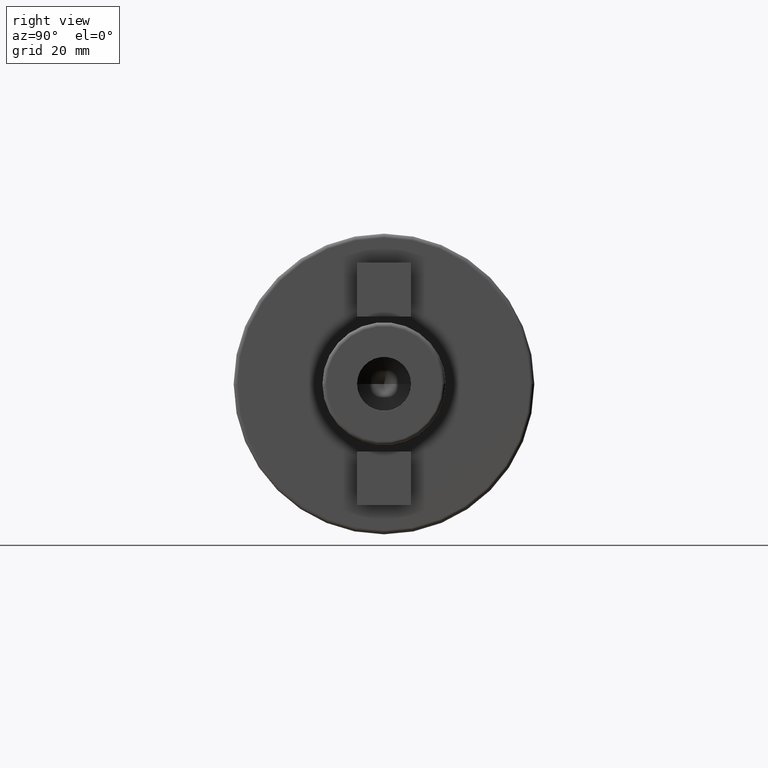
[diagram: clean part render]
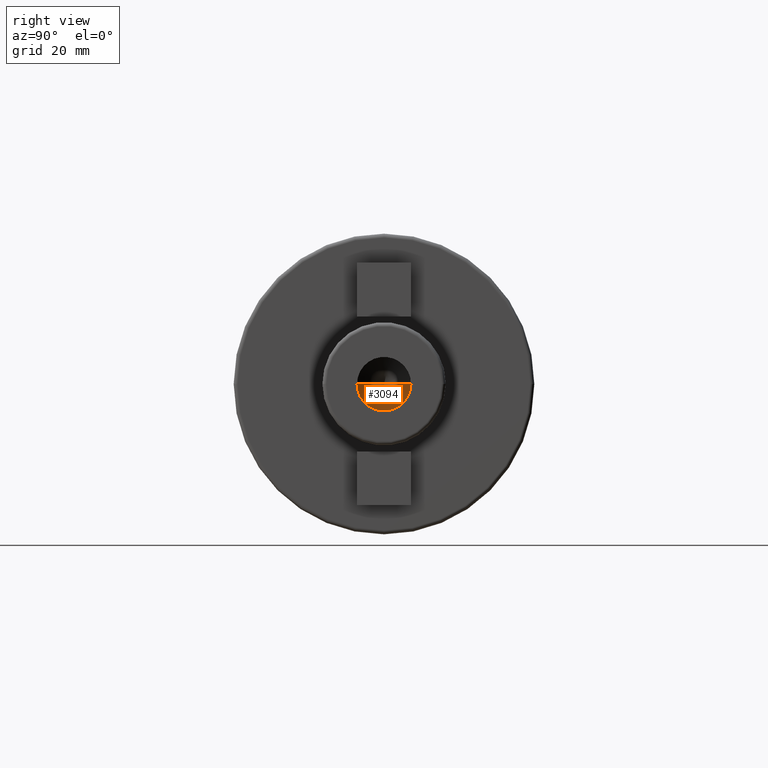
[diagram: same view with one face highlighted and labeled with its STEP entity id]
A machine part, right view. The second image highlights one B-rep face of the part: STEP entity #3094.
In plain terms, the highlighted conical surface has half-angle 59 deg.
Its self-contained STEP definition (entity closure, byte-faithful):
#1052=CARTESIAN_POINT('',(4.9E1,0.E0,0.E0));
#1053=DIRECTION('',(1.E0,0.E0,0.E0));
#1054=DIRECTION('',(0.E0,-1.E0,0.E0));
#1055=AXIS2_PLACEMENT_3D('',#1052,#1053,#1054);
#1070=DIRECTION('',(5.150380749101E-1,-8.571673007021E-1,0.E0));
#1071=VECTOR('',#1070,8.166433780507E0);
#1072=CARTESIAN_POINT('',(4.479397566681E1,0.E0,0.E0));
#1073=LINE('',#1072,#1071);
#1074=DIRECTION('',(5.150380749101E-1,8.571673007021E-1,0.E0));
#1075=VECTOR('',#1074,8.166433780507E0);
#1076=CARTESIAN_POINT('',(4.479397566681E1,0.E0,0.E0));
#1077=LINE('',#1076,#1075);
#1633=CARTESIAN_POINT('',(4.479397566681E1,0.E0,0.E0));
#1634=CARTESIAN_POINT('',(4.9E1,-7.E0,0.E0));
#1635=VERTEX_POINT('',#1633);
#1636=VERTEX_POINT('',#1634);
#1637=CARTESIAN_POINT('',(4.9E1,7.E0,0.E0));
#1638=VERTEX_POINT('',#1637);
#3084=CARTESIAN_POINT('',(4.689698783340E1,0.E0,0.E0));
#3085=DIRECTION('',(1.E0,0.E0,0.E0));
#3086=DIRECTION('',(0.E0,-1.E0,0.E0));
#3087=AXIS2_PLACEMENT_3D('',#3084,#3085,#3086);
#3088=CONICAL_SURFACE('',#3087,3.5E0,5.9E1);
#3089=ORIENTED_EDGE('',*,*,#3076,.F.);
#3090=ORIENTED_EDGE('',*,*,#3079,.T.);
#3091=ORIENTED_EDGE('',*,*,#3051,.F.);
#3092=EDGE_LOOP('',(#3089,#3090,#3091));
#3093=FACE_OUTER_BOUND('',#3092,.F.);
#3094=ADVANCED_FACE('',(#3093),#3088,.F.);
#1056=CIRCLE('',#1055,7.E0);
#3051=EDGE_CURVE('',#1636,#1638,#1056,.T.);
#3076=EDGE_CURVE('',#1635,#1636,#1073,.T.);
#3079=EDGE_CURVE('',#1635,#1638,#1077,.T.);